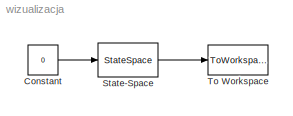
MODEL wizualizacja
KIND model
BLOCK [Constant] Constant
  SID = 3
  Value = 0
BLOCK [StateSpace] State-Space
  A = A
  B = [0;0]
  C = [1 0;0 1]
  D = [0;0]
  SID = 1
  X0 = x0
BLOCK [ToWorkspace] To Workspace
  MaxDataPoints = inf
  Ports = [1]
  SID = 4
  SampleTime = -1
  VariableName = x
LINE Constant:1 -> State-Space:1
LINE State-Space:1 -> To Workspace:1
